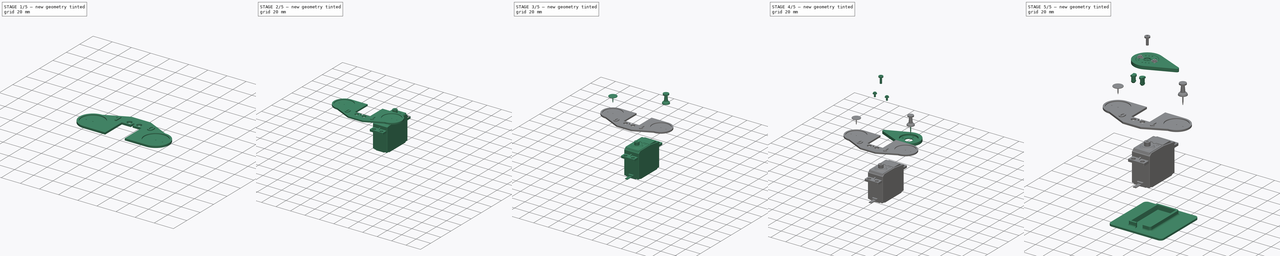
[diagram: build sequence overview — one tinted view per stage of 5, left to right]
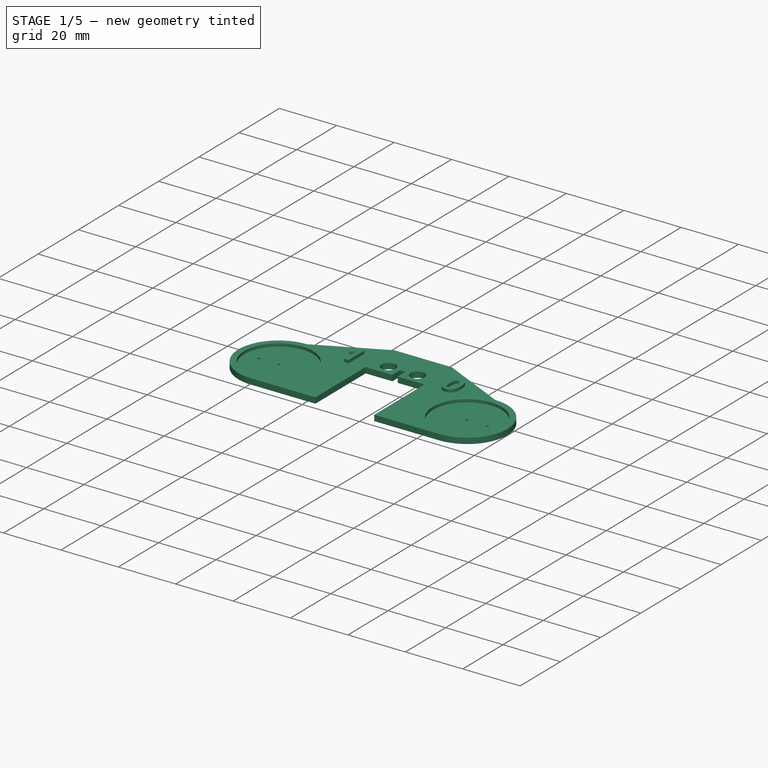
[diagram: stage 1 of 5 — iso view after this stage's code; geometry added in this stage tinted green]
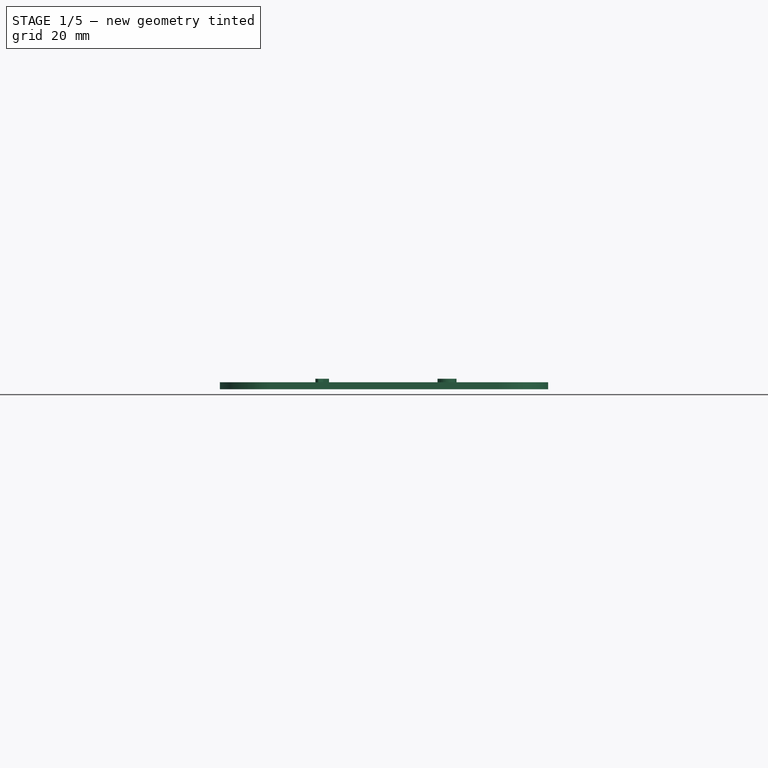
[diagram: stage 1 of 5 — front view after this stage's code; geometry added in this stage tinted green]
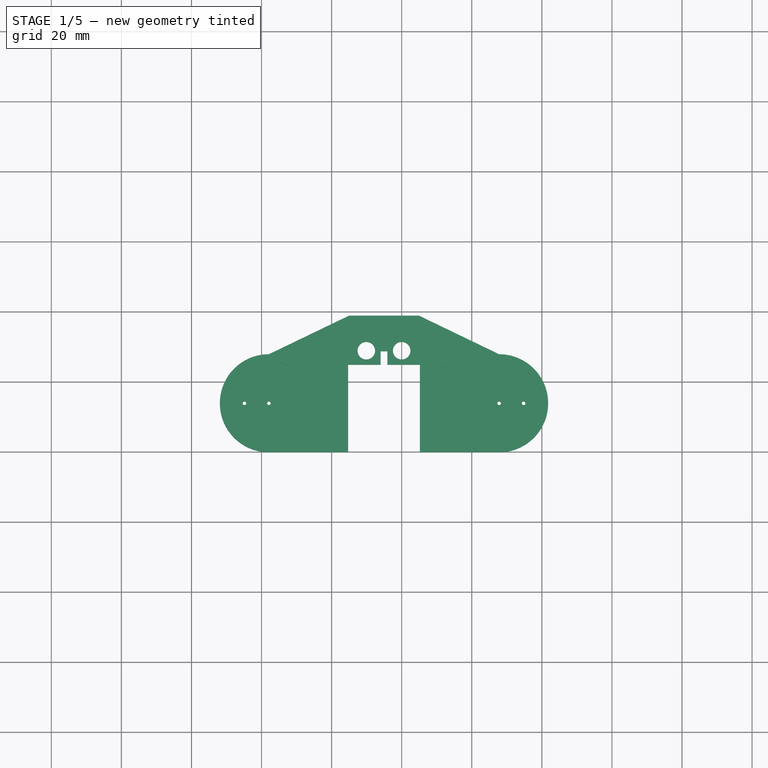
[diagram: stage 1 of 5 — top view after this stage's code; geometry added in this stage tinted green]
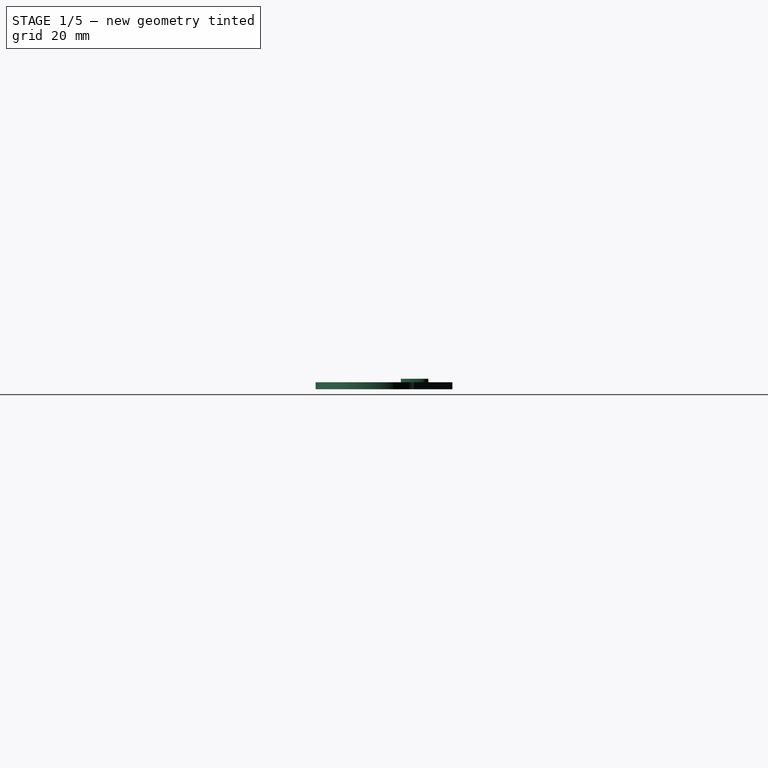
[diagram: stage 1 of 5 — right view after this stage's code; geometry added in this stage tinted green]
FCSTD DOCUMENT  (FreeCAD 0.16R6707 (Git))
Label: Servo-position-dashboard
License: All rights reserved
LicenseURL: http://en.wikipedia.org/wiki/All_rights_reserved
objects: Part::Part2DObjectPython×23, Part::FeaturePython×17, Part::Feature×11, App::DocumentObjectGroup×8, App::Annotation×7, Sketcher::SketchObject×3, PartDesign::Pocket×2, Part::Extrusion×2, Part::Compound×1, PartDesign::Pad×1, Part::MultiFuse×1
note: 64 computed .brp shape members not serialized (recipe doc carries the construction recipe); baked Part::Feature solids carry a one-line shape summary decoded from their .brp

FEATURE [Part::Feature] Cut001  label="Shaft-bolt001"
  Placement = pos=(-5.06895,33.8995,7.85) rot=(0,0,1;0rad)
  shape: bbox 5.38 x 5.38 x 9.391 mm, 18 faces (baked)
FEATURE [Part::Feature] Fillet003  label="Futaba-bolt002"
  Placement = pos=(-13.1362,33.9192,16.34) rot=(1,0,0;1.5708rad)
  shape: bbox 4.8 x 4.8 x 5.5 mm, 21 faces (baked)
FEATURE [Part::Feature] Fillet002  label="Futaba-bolt1"
  Placement = pos=(2.99834,33.8799,16.34) rot=(1,0,0;1.5708rad)
  shape: bbox 4.8 x 4.8 x 5.5 mm, 21 faces (baked)
FEATURE [Part::Feature] Pocket001001  label="pin-h003"
  Placement = pos=(0,48.9,-2.6) rot=(-0.610924,0.559809,-0.559809;2.04477rad)
  shape: bbox 5.412 x 6 x 8.1 mm, 20 faces (baked)
FEATURE [Sketcher::SketchObject] Sketch008  label="test-part-sketch001"
  sketch-geometry (32):
    g0: Circle [constr] CenterX=0 CenterY=48.9 CenterZ=0 NormalX=0 NormalY=0 NormalZ=1 Radius=2.15
    g1: LineSegment [constr] StartX=-14.1 StartY=44.6 StartZ=0 EndX=-14.1 EndY=51.6 EndZ=0
    g2: ArcOfCircle [constr] CenterX=-13.5 CenterY=51.6 CenterZ=0 NormalX=0 NormalY=0 NormalZ=1 Radius=0.6 StartAngle=1.5708 EndAngle=3.14159
    g3: LineSegment [constr] StartX=-13.5 StartY=52.2 StartZ=0 EndX=3.4 EndY=52.2 EndZ=0
    g4: ArcOfCircle [constr] CenterX=3.4 CenterY=51.6 CenterZ=0 NormalX=0 NormalY=0 NormalZ=1 Radius=0.6 StartAngle=0 EndAngle=1.5708
    g5: LineSegment [constr] StartX=4 StartY=51.6 StartZ=0 EndX=4 EndY=44.6 EndZ=0
    g6: LineSegment [constr] StartX=-4.3 StartY=44.6 StartZ=0 EndX=4 EndY=44.6 EndZ=0
    g7: LineSegment [constr] StartX=-4.3 StartY=48.55 StartZ=0 EndX=-4.3 EndY=44.6 EndZ=0
    g8: LineSegment [constr] StartX=-5.8 StartY=48.55 StartZ=0 EndX=-4.3 EndY=48.55 EndZ=0
    g9: LineSegment [constr] StartX=-5.8 StartY=48.55 StartZ=0 EndX=-5.8 EndY=44.6 EndZ=0
    g10: Circle [constr] CenterX=-10.1 CenterY=48.9 CenterZ=0 NormalX=0 NormalY=0 NormalZ=1 Radius=2.15
    g11: LineSegment [constr] StartX=-5.05 StartY=52.2 StartZ=0 EndX=-5.05 EndY=44.6 EndZ=0
    g12: LineSegment [constr] StartX=3.4 StartY=51.6 StartZ=0 EndX=4 EndY=51.6 EndZ=0
    g13: LineSegment [constr] StartX=3.4 StartY=52.2 StartZ=0 EndX=3.4 EndY=51.6 EndZ=0
    g14: Circle CenterX=0 CenterY=48.9 CenterZ=0 NormalX=0 NormalY=0 NormalZ=1 Radius=2.5
    g15: LineSegment [constr] StartX=-10.1 StartY=48.9 StartZ=0 EndX=0 EndY=48.9 EndZ=0
    g16: Circle CenterX=-10.1 CenterY=48.9 CenterZ=0 NormalX=0 NormalY=0 NormalZ=1 Radius=2.5
    g17: LineSegment StartX=-6 StartY=44.9 StartZ=0 EndX=-6 EndY=48.75 EndZ=0
    g18: LineSegment StartX=-6 StartY=48.75 StartZ=0 EndX=-4.1 EndY=48.75 EndZ=0
    g19: LineSegment StartX=-4.1 StartY=48.75 StartZ=0 EndX=-4.1 EndY=44.9 EndZ=0
    g20: LineSegment StartX=-37.9 StartY=47.9 StartZ=0 EndX=-15.05 EndY=58.9 EndZ=0
    g21: LineSegment StartX=-15.05 StartY=58.9 StartZ=0 EndX=4.95 EndY=58.9 EndZ=0
    g22: ArcOfCircle CenterX=-37.9 CenterY=33.9 CenterZ=0 NormalX=0 NormalY=0 NormalZ=1 Radius=14 StartAngle=1.5708 EndAngle=4.71239
    g23: LineSegment StartX=-37.9 StartY=19.9 StartZ=0 EndX=-15.3 EndY=19.9 EndZ=0
    g24: LineSegment StartX=-15.3 StartY=19.9 StartZ=0 EndX=-15.3 EndY=44.9 EndZ=0
    g25: LineSegment StartX=-15.3 StartY=44.9 StartZ=0 EndX=-6 EndY=44.9 EndZ=0
    g26: LineSegment [constr] StartX=-37.9 StartY=47.9 StartZ=0 EndX=-37.9 EndY=19.9 EndZ=0
    g27: LineSegment StartX=-4.1 StartY=44.9 StartZ=0 EndX=5.2 EndY=44.9 EndZ=0
    g28: LineSegment StartX=5.2 StartY=44.9 StartZ=0 EndX=5.2 EndY=19.9 EndZ=0
    g29: LineSegment StartX=5.2 StartY=19.9 StartZ=0 EndX=27.8 EndY=19.9 EndZ=0
    g30: LineSegment StartX=4.95 StartY=58.9 StartZ=0 EndX=27.8 EndY=47.9 EndZ=0
    g31: ArcOfCircle CenterX=27.8 CenterY=33.9 CenterZ=0 NormalX=0 NormalY=0 NormalZ=1 Radius=14 StartAngle=4.71239 EndAngle=7.85398
  constraints (85):
    c: Equal(g10,g0)
    c: Radius(g10) = 2.15
    c: DistanceX(g0) = 0
    c: DistanceY(g0) = 48.9
    c: PointOnObject(g11,g3)
    c: DistanceX(g6,g6) = 8.3
    c: DistanceX(g0,g5) = 4
    c: DistanceY(g5,g0) = 4.3
    c: Radius(g4) = 0.6
    c: DistanceY(g5,g5) = 7
    c: Vertical(g5)
    c: Coincident(g12,g4)
    c: Coincident(g12,g4)
    c: Horizontal(g12)
    c: Vertical(g13)
    c: Coincident(g13,g4)
    c: Coincident(g4,g13)
    c: Coincident(g4,g5)
    c: Coincident(g3,g4)
    c: Symmetric(g3,g3,g11)
    c: DistanceX(g8,g8) = 1.5
    c: DistanceY(g7,g7) = 3.95
    c: Coincident(g7,g6)
    c: Vertical(g7)
    c: Horizontal(g6)
    c: Coincident(g6,g5)
    c: Coincident(g8,g7)
    c: Symmetric(g8,g7,g11)
    c: PointOnObject(g11,g6)
    c: Symmetric(g2,g4,g11)
    c: Coincident(g2,g3)
    c: Coincident(g2,g1)
    c: Symmetric(g1,g5,g11)
    c: Coincident(g9,g8)
    c: Symmetric(g9,g6,g11)
    c: Symmetric(g10,g0,g11)
    c: Symmetric(g1,g4,g11)
    c: Coincident(g14,g0)
    c: Radius(g14) = 2.5
    c: Coincident(g15,g10)
    c: Coincident(g15,g0)
    c: Coincident(g16,g10)
    c: Equal(g16,g14)
    c: Vertical(g17)
    c: Coincident(g17,g18)
    c: Horizontal(g18)
    c: Coincident(g18,g19)
    c: Vertical(g19)
    c: Symmetric(g17,g19,g11)
    c: DistanceX(g7,g18) = 0.2
    c: DistanceY(g7,g18) = 0.2
    c: Coincident(g20,g21)
    c: Horizontal(g21)
    c: Coincident(g22,g20)
    c: Horizontal(g23)
    c: Coincident(g23,g22)
    c: Coincident(g23,g24)
    c: Vertical(g24)
    c: Coincident(g25,g24)
    c: Horizontal(g25)
    c: Coincident(g17,g25)
    c: DistanceY(g1,g24) = 0.3
    c: DistanceX(g24,g1) = 1.2
    c: Vertical(g26)
    c: PointOnObject(g22,g26)
    c: Coincident(g26,g20)
    c: Coincident(g26,g22)
    c: DistanceX(g22,g10) = 27.8
    c: DistanceY(g22,g10) = 15
    c: Radius(g22) = 14
    c: Symmetric(g20,g21,g11)
    c: DistanceX(g21,g21) = 20
    c: DistanceY(g24,g20) = 14
    c: Coincident(g19,g27)
    c: Coincident(g27,g28)
    c: Vertical(g28)
    c: Coincident(g28,g29)
    c: Horizontal(g29)
    c: Coincident(g21,g30)
    c: Symmetric(g22,g31,g11)
    c: Symmetric(g27,g24,g11)
    c: Symmetric(g29,g22,g11)
    c: Symmetric(g30,g20,g11)
    c: Coincident(g31,g30)
    c: Coincident(g29,g31)
FEATURE [PartDesign::Pad] Pad  label="dashboard-body"
  Length = 2
  Length2 = 100
  Sketch = -> Sketch008
  Type = 0
FEATURE [Part::Feature] Pocket001002  label="pin-h004"
  Placement = pos=(-10.1,48.9,-2.6) rot=(-0.642764,-0.541689,0.541689;1.99905rad)
  shape: bbox 5.448 x 6 x 8.1 mm, 20 faces (baked)
FEATURE [Sketcher::SketchObject] Sketch
  ExternalGeometry = -> [Pad]
  Placement = pos=(0,0,2) rot=(0,0,1;0rad)
  Support = -> Pad [Face18]
  sketch-geometry (4):
    g0: LineSegment [constr] StartX=-37.9 StartY=19.9 StartZ=0 EndX=0 EndY=19.9 EndZ=0
    g1: LineSegment [constr] StartX=-5.05 StartY=58.9 StartZ=0 EndX=-5.05 EndY=19.9 EndZ=0
    g2: Circle CenterX=-37.9 CenterY=33.9 CenterZ=0 NormalX=0 NormalY=0 NormalZ=1 Radius=12
    g3: Circle CenterX=27.8 CenterY=33.9 CenterZ=0 NormalX=0 NormalY=0 NormalZ=1 Radius=12
  constraints (11):
    c: Coincident(g0,g-3)
    c: PointOnObject(g0,g-2)
    c: Horizontal(g0)
    c: PointOnObject(g1,g-4)
    c: PointOnObject(g1,g0)
    c: Vertical(g1)
    c: Symmetric(g-4,g-4,g1)
    c: Coincident(g2,g-3)
    c: Radius(g2) = 12
    c: Symmetric(g2,g3,g1)
    c: Equal(g3,g2)
FEATURE [PartDesign::Pocket] Pocket  label="dashboard-pos"
  Length = 1
  Sketch = -> Sketch
  Type = 0
FEATURE [Part::Part2DObjectPython] ShapeString  # Draft 2D object (typed FeaturePython)
  FontFile = <userpath>/develop/3D-parts/2017-03-20-Servo-position-dashboard/OpenSans-Bold.ttf
  Placement = pos=(-42.0562,35.3964,1) rot=(0,0,1;0rad)
  Size = 10
  String = 1
  Support = -> Pocket
  Tracking = 0
FEATURE [Part::Part2DObjectPython] ShapeString001  # Draft 2D object (typed FeaturePython)
  FontFile = <userpath>/develop/3D-parts/2017-03-20-Servo-position-dashboard/OpenSans-Bold.ttf
  Placement = pos=(25.1078,35.9088,1) rot=(0,0,1;0rad)
  Size = 10
  String = 0
  Support = -> Pocket
  Tracking = 0
FEATURE [Part::Extrusion] Extrude  label="Number-1"
  Base = -> ShapeString
  Dir = (0,0,1)
  Placement = pos=(16.8051,8.80922,1) rot=(0,0,1;0rad)
  Solid = true
FEATURE [Part::Extrusion] Extrude001  label="Number-0"
  Base = -> ShapeString001
  Dir = (0,0,1)
  Placement = pos=(-15.2805,8.34492,1) rot=(0,0,1;0rad)
  Solid = true
FEATURE [Part::Feature] Fillet004  label="Final-support-with-fillet001"
  Placement = pos=(-5.04419,23.9,-28.4) rot=(0,0,1;1.5708rad)
  shape: bbox 60 x 60 x 7 mm, 36 faces (baked)
FEATURE [Part::Feature] Clone002  label="Handle001"
  Placement = pos=(-44.9,33.9,1) rot=(1,0,0;1.5708rad)
  shape: bbox 9.1 x 9.1 x 12.3 mm, 8 faces (baked)
FEATURE [Part::Feature] Clone001001  label="Pin001"
  Placement = pos=(-44.9,33.9,1) rot=(1,0,0;1.5708rad)
  shape: bbox 1.15 x 1.15 x 11 mm, 4 faces (baked)
FEATURE [Part::Feature] Clone001002  label="cover001"
  Placement = pos=(27.8,33.9,2.3) rot=(1,0,0;1.5708rad)
  shape: bbox 11.26 x 11.26 x 0.9 mm, 7 faces (baked)
FEATURE [Part::Feature] Clone001003  label="Pushpin-body001"
  Placement = pos=(27.8,33.9,2.3) rot=(0,0,1;0rad)
  shape: bbox 9.55 x 9.55 x 8.4 mm, 7 faces (baked)
FEATURE [Sketcher::SketchObject] Sketch009
  ExternalGeometry = -> [Pocket]
  Placement = pos=(0,0,1) rot=(0,0,1;0rad)
  Support = -> Pocket [Face22]
  sketch-geometry (6):
    g0: Circle CenterX=-37.9 CenterY=33.9 CenterZ=0 NormalX=0 NormalY=0 NormalZ=1 Radius=0.5
    g1: Circle CenterX=-44.9 CenterY=33.9 CenterZ=0 NormalX=0 NormalY=0 NormalZ=1 Radius=0.5
    g2: LineSegment [constr] StartX=-44.9 StartY=33.9 StartZ=0 EndX=-37.9 EndY=33.9 EndZ=0
    g3: Circle CenterX=27.8 CenterY=33.9 CenterZ=0 NormalX=0 NormalY=0 NormalZ=1 Radius=0.5
    g4: Circle CenterX=34.8 CenterY=33.9 CenterZ=0 NormalX=0 NormalY=0 NormalZ=1 Radius=0.5
    g5: LineSegment [constr] StartX=-5.05 StartY=58.9 StartZ=0 EndX=-5.05 EndY=33.9 EndZ=0
  constraints (15):
    c: Coincident(g0,g-3)
    c: Radius(g0) = 0.5
    c: Equal(g1,g0)
    c: Coincident(g2,g1)
    c: Coincident(g2,g0)
    c: Horizontal(g2)
    c: DistanceX(g2,g2) = 7
    c: Equal(g3,g4)
    c: Equal(g4,g0)
    c: PointOnObject(g5,g-4)
    c: Vertical(g5)
    c: PointOnObject(g5,g2)
    c: Symmetric(g0,g3,g5)
    c: Symmetric(g-4,g-4,g5)
    c: Symmetric(g4,g1,g5)
FEATURE [PartDesign::Pocket] Pocket001003  label="dashboard-holes"
  Length = 5
  Sketch = -> Sketch009
  Type = 1
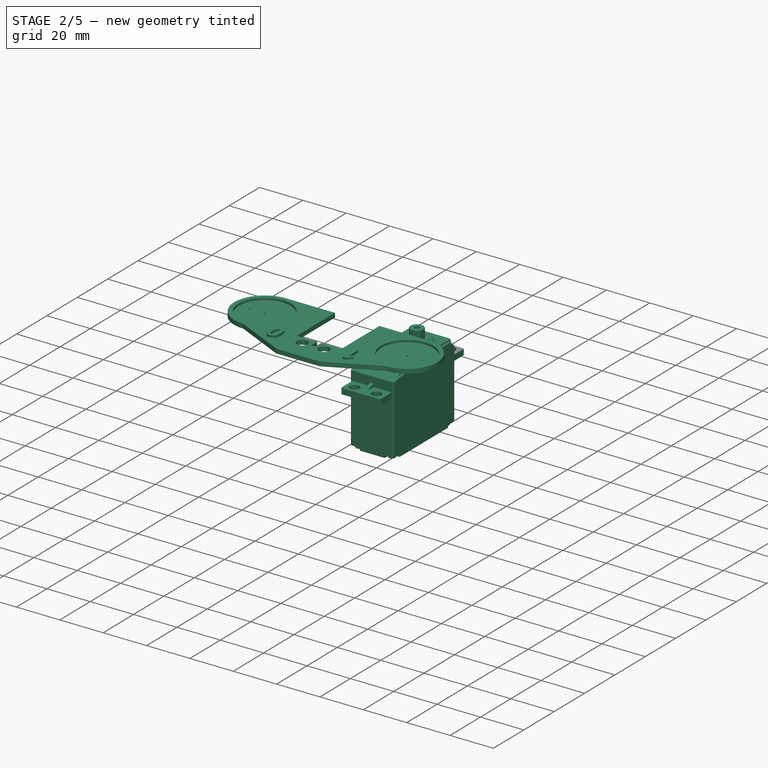
[diagram: stage 2 of 5 — iso view after this stage's code; geometry added in this stage tinted green]
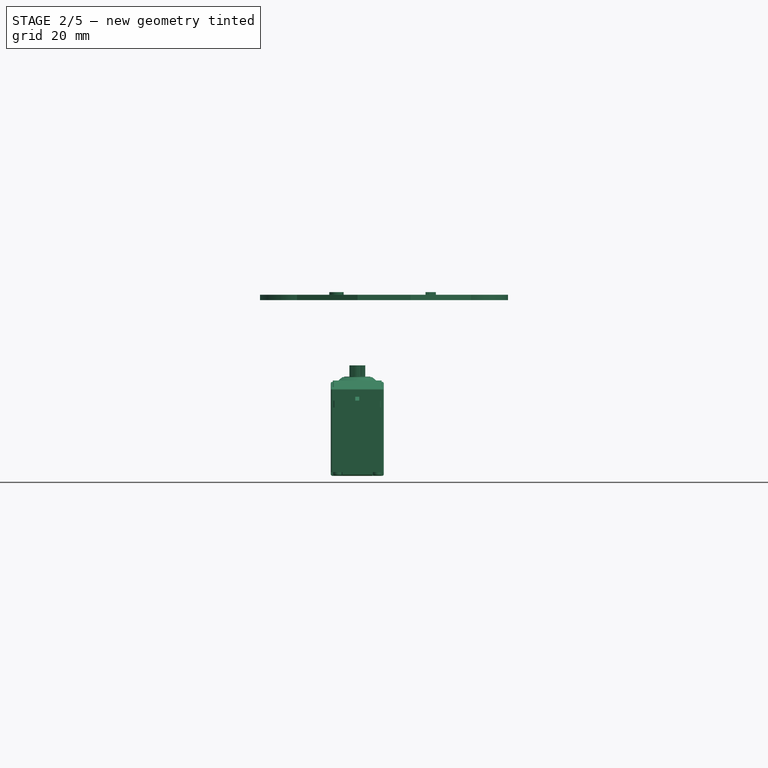
[diagram: stage 2 of 5 — front view after this stage's code; geometry added in this stage tinted green]
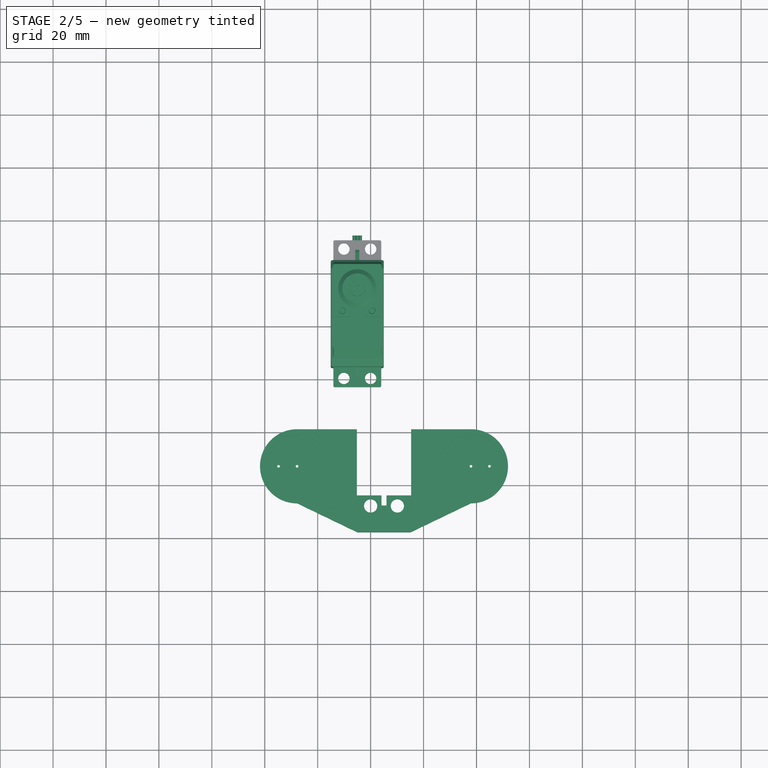
[diagram: stage 2 of 5 — top view after this stage's code; geometry added in this stage tinted green]
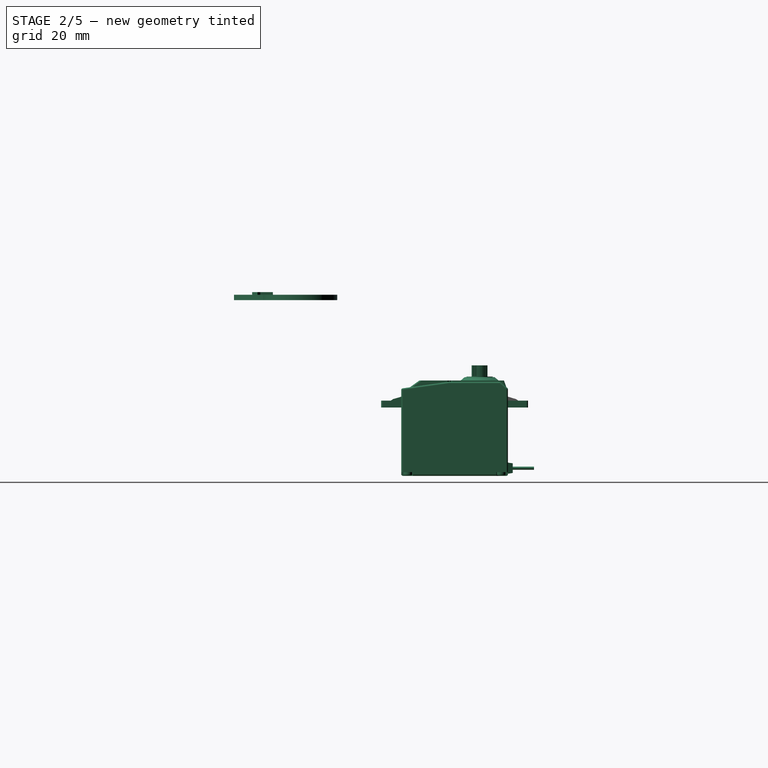
[diagram: stage 2 of 5 — right view after this stage's code; geometry added in this stage tinted green]
FEATURE [Part::Compound] Compound  label="Servo-Futaba-3003-ready"
  Placement = pos=(-5.05,24.45,-28.4) rot=(0,0,1;1.5708rad)
FEATURE [Part::MultiFuse] Fusion  label="Dashboard-numbers-holes"
  Shapes = -> [Pocket001003,Extrude,Extrude001]
FEATURE [App::DocumentObjectGroup] Grupo001  label="src"
  Group = -> [Pad,Fusion,Pocket]
FEATURE [Part::FeaturePython] Clone001004  label="Dashboard-final"  # Draft clone (typed FeaturePython)
  Objects = -> [Fusion]
  Scale = (1,1,1)
FEATURE [App::DocumentObjectGroup] Grupo002  label="Print"
  Group = -> [Clone001004]
FEATURE [Part::FeaturePython] Clone001005  label="Dashboard-final2"  # Draft clone (typed FeaturePython)
  Objects = -> [Clone001004]
  Scale = (1,1,1)
FEATURE [Part::FeaturePython] Clone001019  label="Clone of Dashboard-final2"  # Draft clone (typed FeaturePython)
  Objects = -> [Clone001005]
  Placement = pos=(0,0,38) rot=(0,0,-1;3.14159rad)
  Scale = (1,1,1)
FEATURE [App::DocumentObjectGroup] Grupo004  label="Pointer"
  Group = -> [Clone001008,Clone001009,Clone001012,Clone001010,Clone001011]
FEATURE [App::DocumentObjectGroup] Grupo005  label="Pushpin1"
  Group = -> [Clone001007,Clone001016]
FEATURE [App::DocumentObjectGroup] Grupo006  label="Pushpin2"
  Group = -> [Clone001017,Clone001018]
FEATURE [Part::Part2DObjectPython] Line001  # Draft 2D object (typed FeaturePython)
  ChamferSize = 0
  Closed = false
  End = (5.05,-24.45,-70.4)
  FilletRadius = 0
  Length = 42
  MakeFace = true
  Points = (2) [(5.05,-24.45,-28.4),(5.05,-24.45,-70.4)]
  Start = (5.05,-24.45,-28.4)
  Subdivisions = 0
FEATURE [Part::Part2DObjectPython] Line002  # Draft 2D object (typed FeaturePython)
  ChamferSize = 0
  Closed = false
  End = (44.9,-33.9,60.85)
  FilletRadius = 0
  Length = 21.85
  MakeFace = true
  Points = (2) [(44.9,-33.9,39),(44.9,-33.9,60.85)]
  Start = (44.9,-33.9,39)
  Subdivisions = 0
  Support = -> Clone001019
FEATURE [Part::Part2DObjectPython] Line004  # Draft 2D object (typed FeaturePython)
  ChamferSize = 0
  Closed = false
  End = (0,-48.9,77.4)
  FilletRadius = 0
  Length = 80
  MakeFace = true
  Points = (2) [(6.21725e-15,-48.9,-2.6),(6.61356e-15,-48.9,77.4)]
  Start = (0,-48.9,-2.6)
  Subdivisions = 0
  Support = -> Clone001006
FEATURE [Part::Part2DObjectPython] Line005  # Draft 2D object (typed FeaturePython)
  ChamferSize = 0
  Closed = false
  End = (10.1,-48.9,-2.6)
  FilletRadius = 0
  Length = 80
  MakeFace = true
  Points = (2) [(10.1,-48.9,77.4),(10.1,-48.9,-2.6)]
  Start = (10.1,-48.9,77.4)
  Subdivisions = 0
FEATURE [Part::Part2DObjectPython] Line006  # Draft 2D object (typed FeaturePython)
  ChamferSize = 0
  Closed = false
  End = (5.06895,-33.8995,90.74)
  FilletRadius = 0
  Length = 77.4
  MakeFace = true
  Points = (2) [(5.06895,-33.8995,13.34),(5.06895,-33.8995,90.74)]
  Start = (5.06895,-33.8995,13.34)
  Subdivisions = 0
  Support = -> Clone001006
FEATURE [Part::Part2DObjectPython] Line007  # Draft 2D object (typed FeaturePython)
  ChamferSize = 0
  Closed = false
  End = (5.06895,-33.8995,90.74)
  FilletRadius = 0
  Length = 20.11
  MakeFace = true
  Points = (2) [(5.06895,-33.8995,110.85),(5.06895,-33.8995,90.74)]
  Start = (5.06895,-33.8995,110.85)
  Subdivisions = 0
FEATURE [Part::Part2DObjectPython] Line  # Draft 2D object (typed FeaturePython)
  ChamferSize = 0
  Closed = false
  End = (-27.8,-33.9,39)
  FilletRadius = 0
  Length = 13.2
  MakeFace = true
  Points = (2) [(-27.8,-33.9,52.2),(-27.8,-33.9,39)]
  Start = (-27.8,-33.9,52.2)
  Subdivisions = 0
  Support = -> Clone001019
FEATURE [App::Annotation] Text  label="Text-part-1"
  LabelText = 1
  Position = (71.65,-35,107.68)
FEATURE [Part::Part2DObjectPython] Circle  # Draft 2D object (typed FeaturePython)
  FirstAngle = 0
  LastAngle = 0
  MakeFace = false
  Placement = pos=(72.8398,-35,111.498) rot=(1,0,0;1.5708rad)
  Radius = 6.458
FEATURE [Part::Part2DObjectPython] DWire  # Draft 2D object (typed FeaturePython)
  ChamferSize = 0
  Closed = false
  End = (69,-35,106)
  FilletRadius = 0
  Length = 28.4018
  MakeFace = true
  Placement = pos=(10,0,0) rot=(0,0,1;0rad)
  Points = (3) [(35,-35,97),(52,-35,97),(59,-35,106)]
  Start = (45,-35,97)
  Subdivisions = 0
FEATURE [App::Annotation] Text001
  LabelText = 2
  Position = (79,-35,91)
FEATURE [Part::Part2DObjectPython] Circle001  # Draft 2D object (typed FeaturePython)
  FirstAngle = 0
  LastAngle = 0
  MakeFace = false
  Placement = pos=(81.1909,-35,94.815) rot=(1,0,0;1.5708rad)
  Radius = 6.458
FEATURE [Part::Part2DObjectPython] DWire001  # Draft 2D object (typed FeaturePython)
  ChamferSize = 0
  Closed = false
  End = (77,-35,90)
  FilletRadius = 0
  Length = 28.4018
  MakeFace = true
  Placement = pos=(18,0,-16) rot=(0,0,1;0rad)
  Points = (3) [(35,-35,97),(52,-35,97),(59,-35,106)]
  Start = (53,-35,81)
  Subdivisions = 0
FEATURE [Part::Part2DObjectPython] DWire002  # Draft 2D object (typed FeaturePython)
  ChamferSize = 0
  Closed = false
  End = (-39,-45,96)
  FilletRadius = 0
  Length = 37.5183
  MakeFace = true
  Placement = pos=(-4,-10,0) rot=(0,0,1;0rad)
  Points = (3) [(-3,-35,82),(-20,-35,82),(-35,-35,96)]
  Start = (-7,-45,82)
  Subdivisions = 0
FEATURE [App::Annotation] Text002
  LabelText = 4
  Position = (-83,-35,77)
FEATURE [Part::Part2DObjectPython] Circle002  # Draft 2D object (typed FeaturePython)
  FirstAngle = 0
  LastAngle = 0
  MakeFace = false
  Placement = pos=(-43.8091,-45,100.815) rot=(1,0,0;1.5708rad)
  Radius = 6.458
FEATURE [Part::Part2DObjectPython] DWire003  # Draft 2D object (typed FeaturePython)
  ChamferSize = 0
  Closed = false
  End = (-77,-35,75)
  FilletRadius = 0
  Length = 46.3452
  MakeFace = true
  Points = (3) [(-37,-35,59),(-60,-35,59),(-77,-35,75)]
  Start = (-37,-35,59)
  Subdivisions = 0
FEATURE [Part::Part2DObjectPython] Circle003  # Draft 2D object (typed FeaturePython)
  FirstAngle = 0
  LastAngle = 0
  MakeFace = false
  Placement = pos=(-80.8091,-35,80.815) rot=(1,0,0;1.5708rad)
  Radius = 6.458
FEATURE [App::Annotation] Text003
  LabelText = 3
  Position = (-46,-45,97)
FEATURE [Part::Part2DObjectPython] DWire004  # Draft 2D object (typed FeaturePython)
  ChamferSize = 0
  Closed = false
  End = (77,-35,49)
  FilletRadius = 0
  Length = 28.4018
  MakeFace = true
  Placement = pos=(18,0,-57) rot=(0,0,1;0rad)
  Points = (3) [(35,-35,97),(52,-35,97),(59,-35,106)]
  Start = (53,-35,40)
  Subdivisions = 0
FEATURE [App::Annotation] Text004
  LabelText = 5
  Position = (79,-35,50)
FEATURE [Part::Part2DObjectPython] Circle004  # Draft 2D object (typed FeaturePython)
  FirstAngle = 0
  LastAngle = 0
  MakeFace = false
  Placement = pos=(81.1909,-35,53.815) rot=(1,0,0;1.5708rad)
  Radius = 6.458
FEATURE [Part::Part2DObjectPython] DWire005  # Draft 2D object (typed FeaturePython)
  ChamferSize = 0
  Closed = false
  End = (71,-35,19)
  FilletRadius = 0
  Length = 28.4018
  MakeFace = true
  Placement = pos=(12,0,-87) rot=(0,0,1;0rad)
  Points = (3) [(35,-35,97),(52,-35,97),(59,-35,106)]
  Start = (47,-35,10)
  Subdivisions = 0
FEATURE [App::Annotation] Text005
  LabelText = 6
  Position = (73,-35,20)
FEATURE [Part::Part2DObjectPython] Circle005  # Draft 2D object (typed FeaturePython)
  FirstAngle = 0
  LastAngle = 0
  MakeFace = false
  Placement = pos=(75.1909,-35,23.815) rot=(1,0,0;1.5708rad)
  Radius = 6.458
FEATURE [Part::Part2DObjectPython] DWire006  # Draft 2D object (typed FeaturePython)
  ChamferSize = 0
  Closed = false
  End = (62,-35,-62)
  FilletRadius = 0
  Length = 28.4018
  MakeFace = true
  Placement = pos=(3,0,-168) rot=(0,0,1;0rad)
  Points = (3) [(35,-35,97),(52,-35,97),(59,-35,106)]
  Start = (38,-35,-71)
  Subdivisions = 0
FEATURE [App::Annotation] Text006
  LabelText = 7
  Position = (64,-35,-61)
FEATURE [Part::Part2DObjectPython] Circle006  # Draft 2D object (typed FeaturePython)
  FirstAngle = 0
  LastAngle = 0
  MakeFace = false
  Placement = pos=(66.1909,-35,-57.185) rot=(1,0,0;1.5708rad)
  Radius = 6.458
FEATURE [App::DocumentObjectGroup] Grupo007  label="Annotations"
  Group = -> [Line001,Line002,Line004,Line005,Line006,Line007,Line,Text,Circle,DWire,Text001,Circle001,DWire001,DWire002,Text002,Circle002,DWire003,Circle003,Text003,DWire004,Text004,Circle004,DWire005,Text005,Circle005,DWire006,Text006,Circle006]
FEATURE [App::DocumentObjectGroup] Grupo003  label="Exploded-view"
  Group = -> [Clone001006,Clone001013,Clone001014,Clone001015,Clone001019,Grupo004,Grupo005,Grupo006,Grupo007]
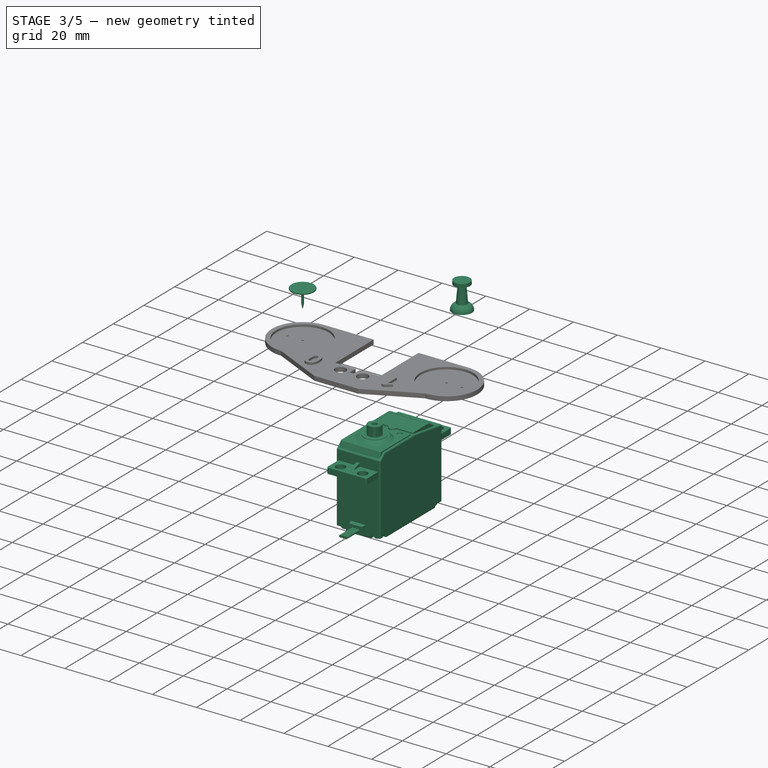
[diagram: stage 3 of 5 — iso view after this stage's code; geometry added in this stage tinted green]
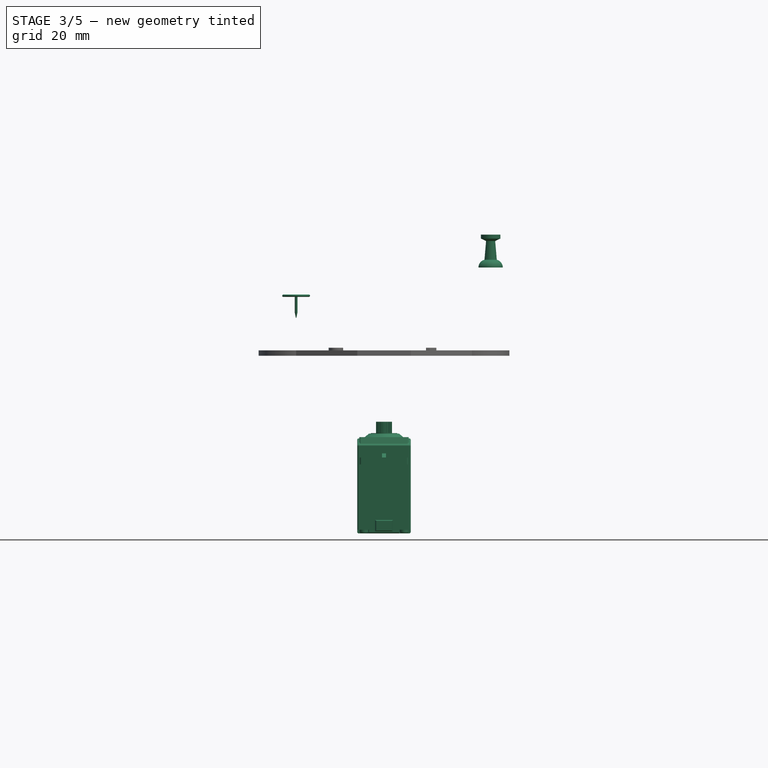
[diagram: stage 3 of 5 — front view after this stage's code; geometry added in this stage tinted green]
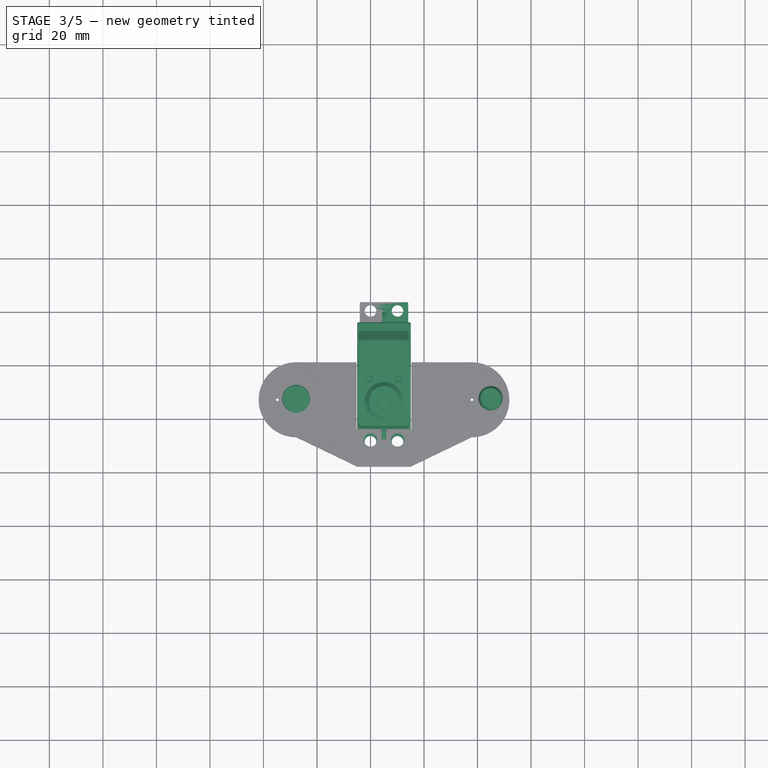
[diagram: stage 3 of 5 — top view after this stage's code; geometry added in this stage tinted green]
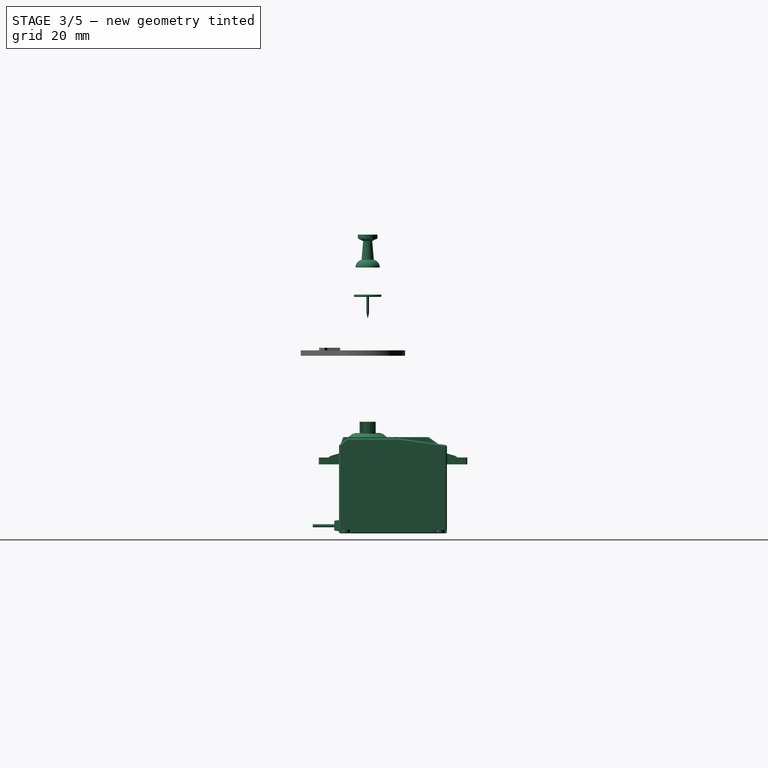
[diagram: stage 3 of 5 — right view after this stage's code; geometry added in this stage tinted green]
FEATURE [App::DocumentObjectGroup] Grupo  label="assembly"
  Group = -> [Compound,Fillet001,Clone,Cut001,Fillet003,Fillet002,Pocket001001,Pocket001002,Fillet004,Clone002,Clone001001,Clone001002,Clone001003,Clone001005]
FEATURE [Part::FeaturePython] Clone001006  label="Clone of Servo-Futaba-3003-ready"  # Draft clone (typed FeaturePython)
  Objects = -> [Compound]
  Placement = pos=(5.05,-24.45,-28.4) rot=(0,0,-1;1.5708rad)
  Scale = (1,1,1)
FEATURE [Part::FeaturePython] Clone001016  label="Clone of Handle001"  # Draft clone (typed FeaturePython)
  Objects = -> [Clone002]
  Placement = pos=(44.9,-33.9,71) rot=(0,-0.707107,-0.707107;3.14159rad)
  Scale = (1,1,1)
FEATURE [Part::FeaturePython] Clone001017  label="Clone of cover001"  # Draft clone (typed FeaturePython)
  Objects = -> [Clone001002]
  Placement = pos=(-27.8,-33.9,60.3) rot=(0,-0.707107,-0.707107;3.14159rad)
  Scale = (1,1,1)
FEATURE [Part::FeaturePython] Clone001018  label="Clone of Pushpin-body001"  # Draft clone (typed FeaturePython)
  Objects = -> [Clone001003]
  Placement = pos=(-27.8,-33.9,60.3) rot=(0,0,-1;3.14159rad)
  Scale = (1,1,1)
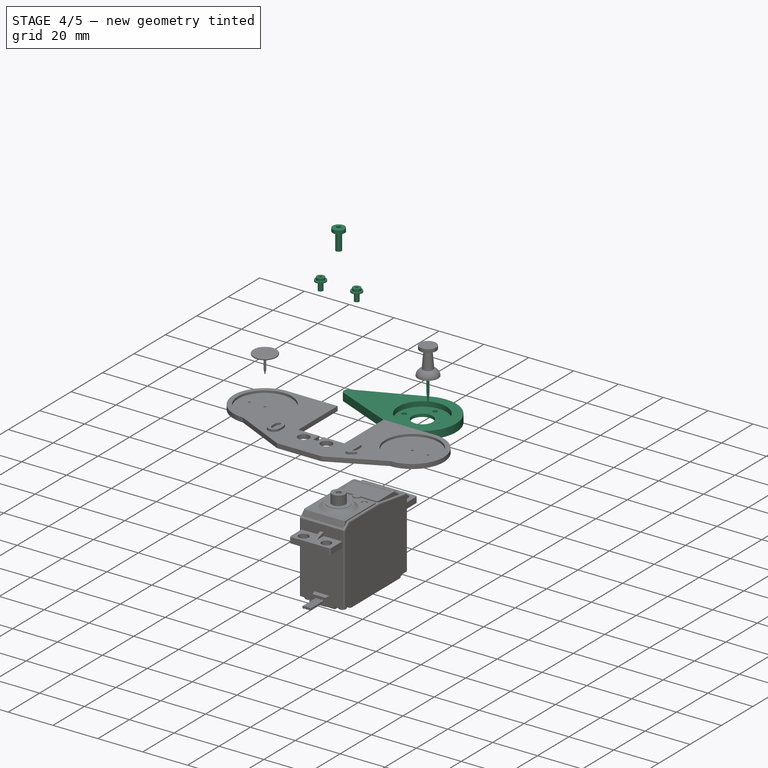
[diagram: stage 4 of 5 — iso view after this stage's code; geometry added in this stage tinted green]
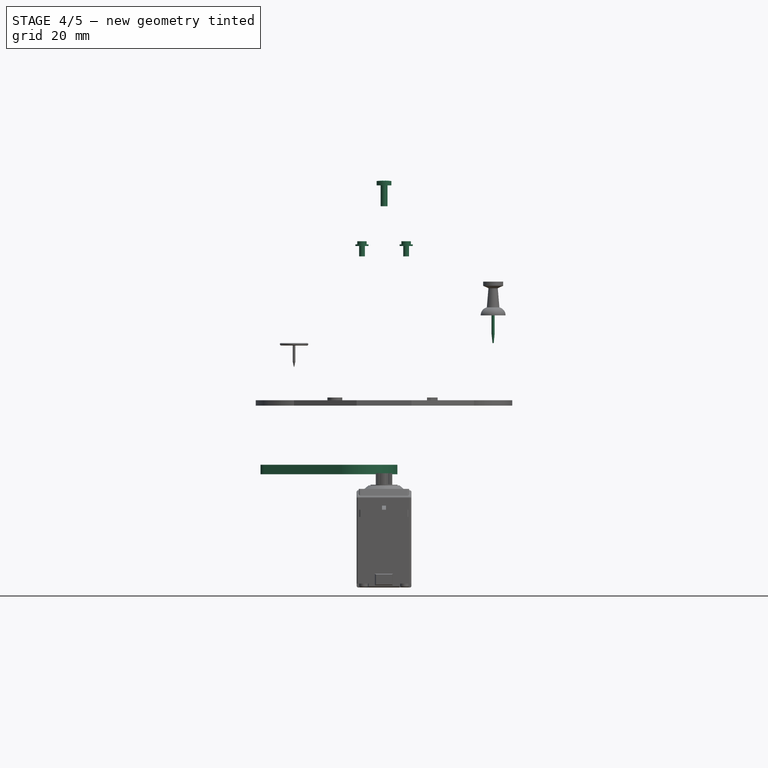
[diagram: stage 4 of 5 — front view after this stage's code; geometry added in this stage tinted green]
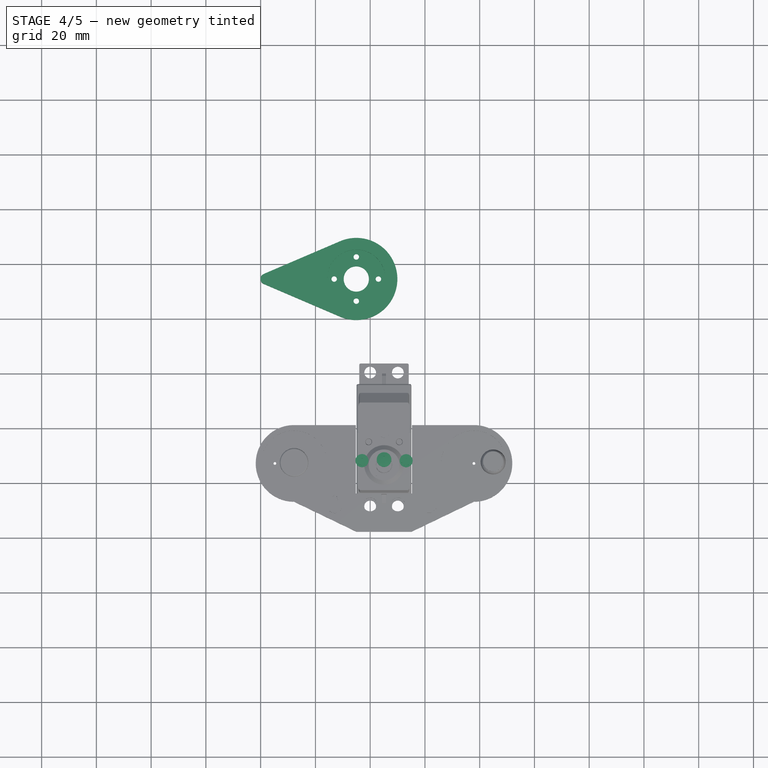
[diagram: stage 4 of 5 — top view after this stage's code; geometry added in this stage tinted green]
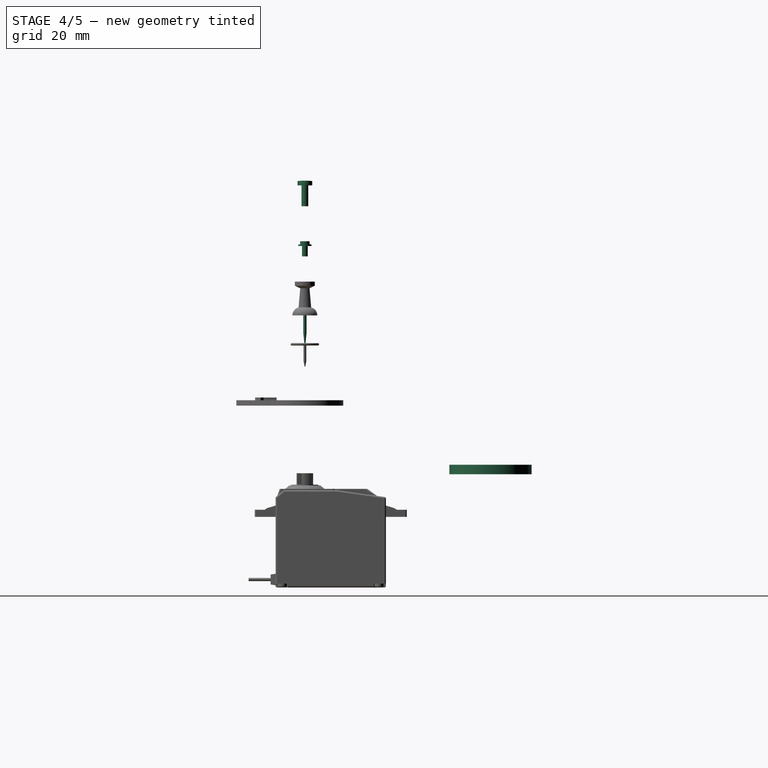
[diagram: stage 4 of 5 — right view after this stage's code; geometry added in this stage tinted green]
FEATURE [Part::Feature] Fillet001  label="Servo-horn"
  Placement = pos=(-5.06895,33.8995,10.74) rot=(0.962893,0.190836,0.190836;1.6086rad)
  shape: bbox 21 x 21 x 6.2 mm, 65 faces (baked)
FEATURE [Part::FeaturePython] Clone  label="pointer1-final"  # WARN: FeaturePython — macro-defined, semantics opaque (R4)
  Placement = pos=(-5.06895,33.8995,12.94) rot=(0,0,1;1.5708rad)
  Scale = (1,1,1)
FEATURE [Part::FeaturePython] Clone001007  label="Clone of Pin001"  # Draft clone (typed FeaturePython)
  Objects = -> [Clone001001]
  Placement = pos=(44.9,-33.9,71) rot=(0,-0.707107,-0.707107;3.14159rad)
  Scale = (1,1,1)
FEATURE [Part::FeaturePython] Clone001010  label="Clone of Shaft-bolt001"  # Draft clone (typed FeaturePython)
  Objects = -> [Cut001]
  Placement = pos=(5.06895,-33.8995,110.85) rot=(0,0,-1;3.14159rad)
  Scale = (1,1,1)
FEATURE [Part::FeaturePython] Clone001011  label="Clone of Futaba-bolt002"  # Draft clone (typed FeaturePython)
  Objects = -> [Fillet003]
  Placement = pos=(13.1362,-33.9192,96.34) rot=(0,-0.707107,-0.707107;3.14159rad)
  Scale = (1,1,1)
FEATURE [Part::FeaturePython] Clone001012  label="Clone of Futaba-bolt1"  # Draft clone (typed FeaturePython)
  Objects = -> [Fillet002]
  Placement = pos=(-2.99834,-33.8799,96.34) rot=(0,-0.707107,-0.707107;3.14159rad)
  Scale = (1,1,1)
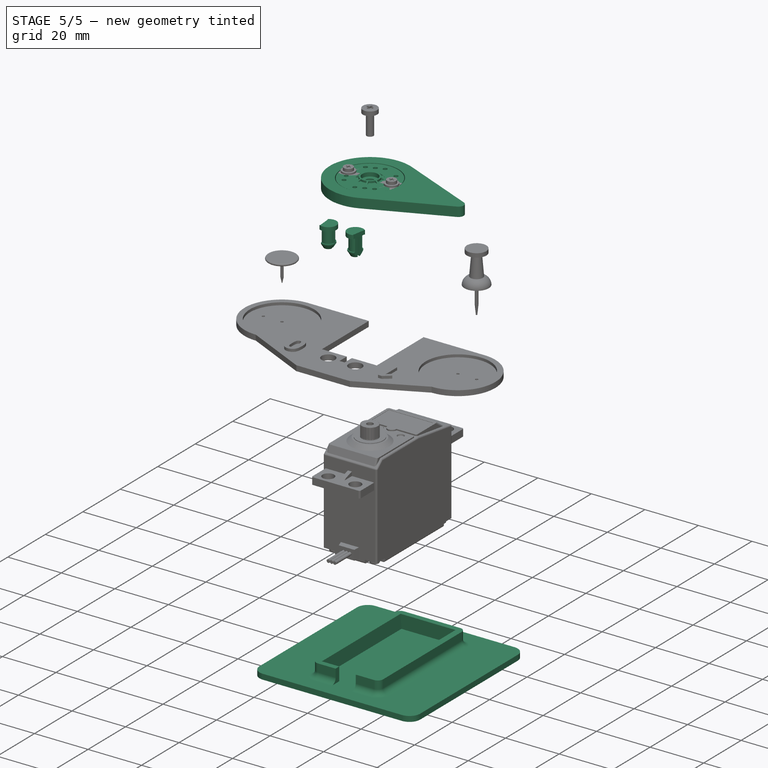
[diagram: stage 5 of 5 — iso view after this stage's code; geometry added in this stage tinted green]
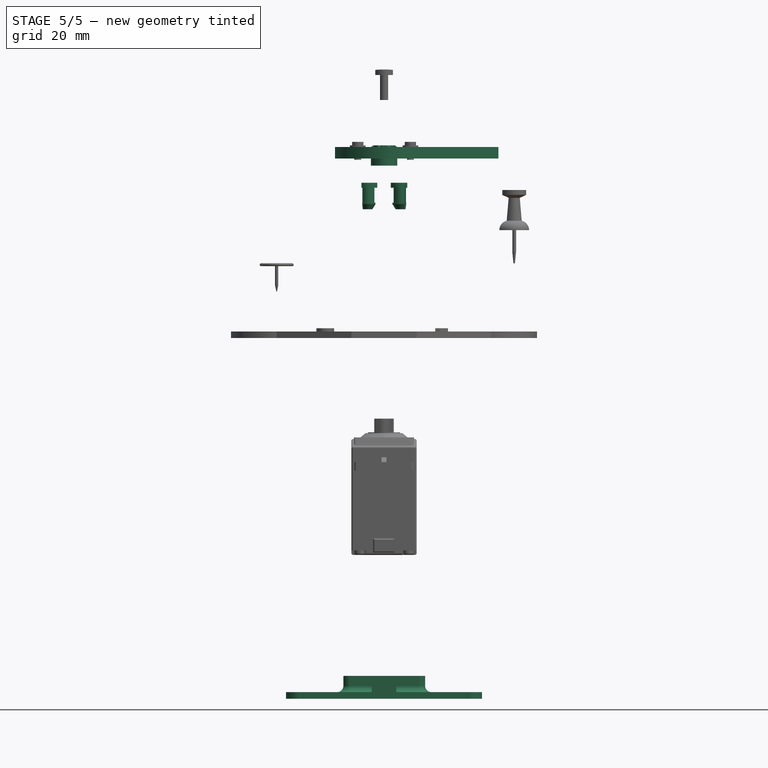
[diagram: stage 5 of 5 — front view after this stage's code; geometry added in this stage tinted green]
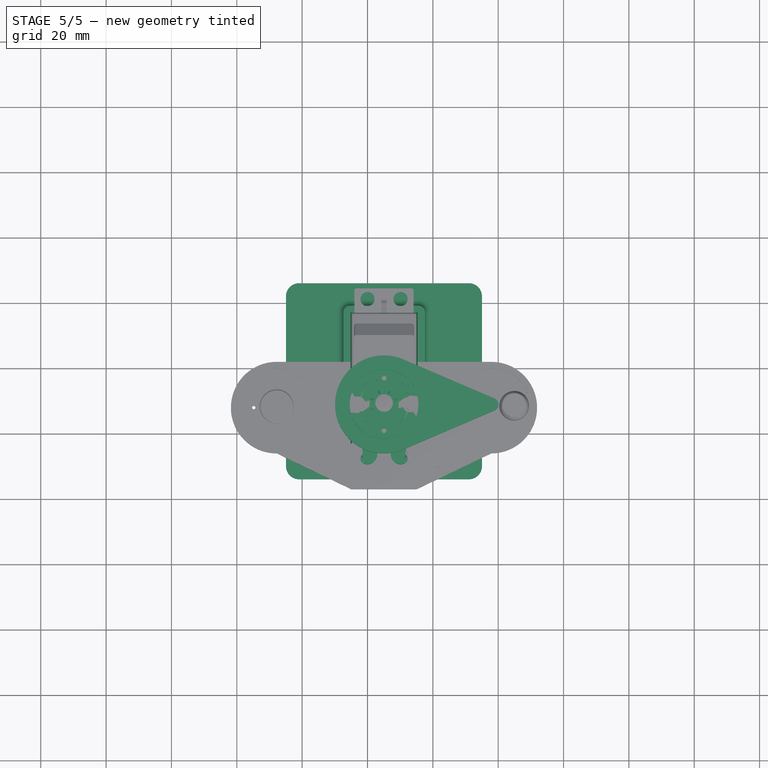
[diagram: stage 5 of 5 — top view after this stage's code; geometry added in this stage tinted green]
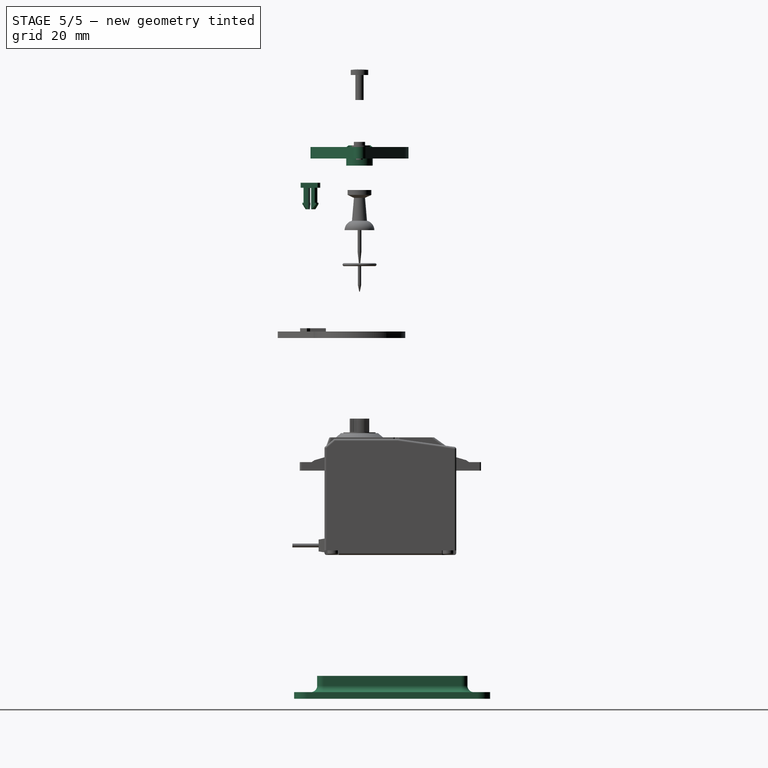
[diagram: stage 5 of 5 — right view after this stage's code; geometry added in this stage tinted green]
FEATURE [Part::FeaturePython] Clone001008  label="Clone of Servo-horn"  # Draft clone (typed FeaturePython)
  Objects = -> [Fillet001]
  Placement = pos=(5.06895,-33.8995,90.74) rot=(0.138785,-0.700264,-0.700264;2.86578rad)
  Scale = (1,1,1)
FEATURE [Part::FeaturePython] Clone001009  label="Clone of pointer1-final"  # Draft clone (typed FeaturePython)
  Objects = -> [Clone]
  Placement = pos=(5.06895,-33.8995,92.94) rot=(0,0,-1;1.5708rad)
  Scale = (1,1,1)
FEATURE [Part::FeaturePython] Clone001013  label="Clone of pin-h003"  # Draft clone (typed FeaturePython)
  Objects = -> [Pocket001001]
  Placement = pos=(0,-48.9,79.4) rot=(0.543775,0.593426,-0.593426;4.13769rad)
  Scale = (1,1,1)
FEATURE [Part::FeaturePython] Clone001014  label="Clone of pin-h004"  # Draft clone (typed FeaturePython)
  Objects = -> [Pocket001002]
  Placement = pos=(10.1,-48.9,79.4) rot=(-0.511913,0.607431,-0.607431;2.19533rad)
  Scale = (1,1,1)
FEATURE [Part::FeaturePython] Clone001015  label="Clone of Final-support-with-fillet001"  # Draft clone (typed FeaturePython)
  Objects = -> [Fillet004]
  Placement = pos=(5.04419,-23.9,-70.4) rot=(0,0,-1;1.5708rad)
  Scale = (1,1,1)
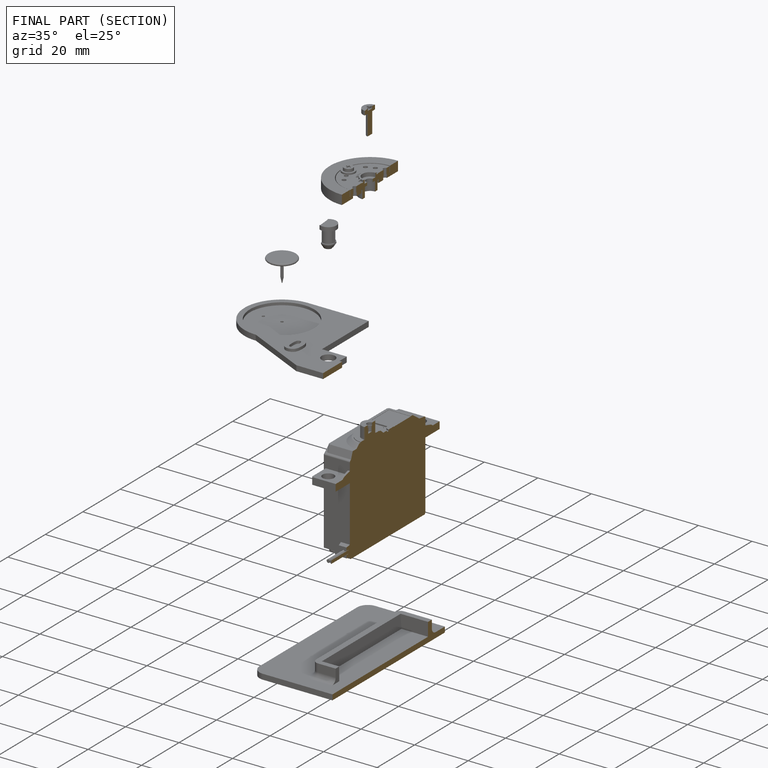
[diagram: finished part — half-section view (interior)]
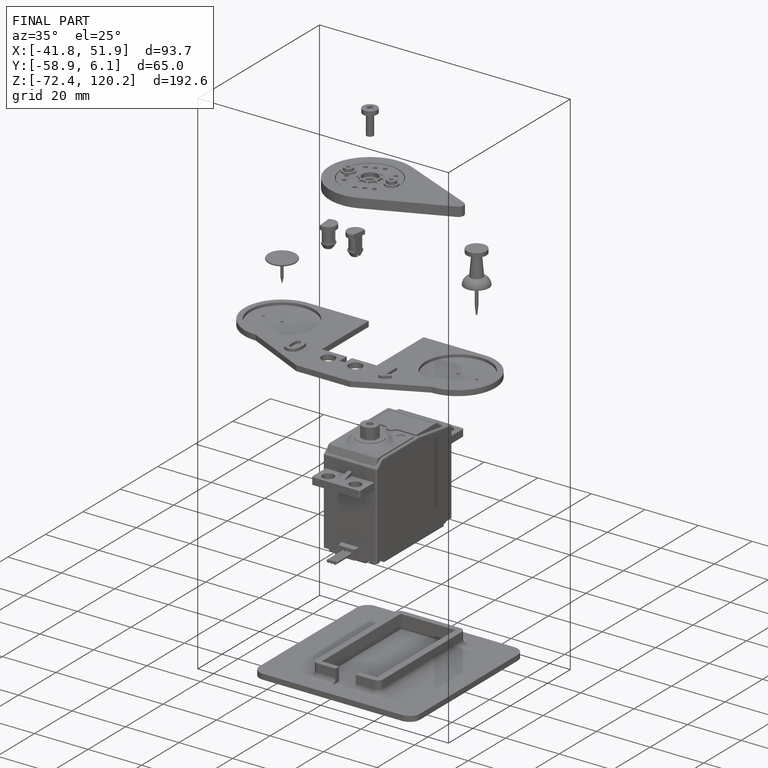
[diagram: finished part — iso view with bounding-box wireframe]
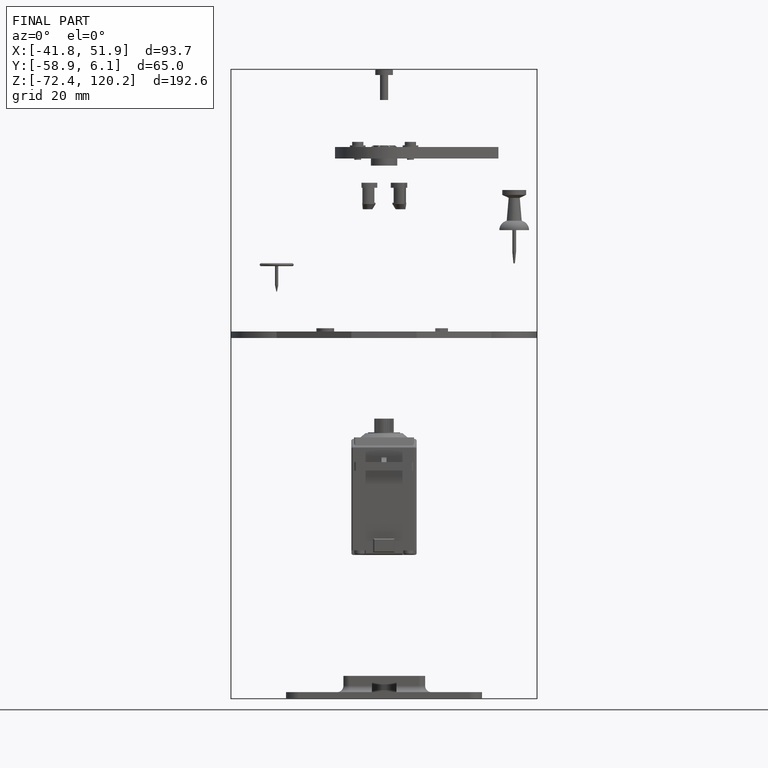
[diagram: finished part — front view with bounding-box wireframe]
